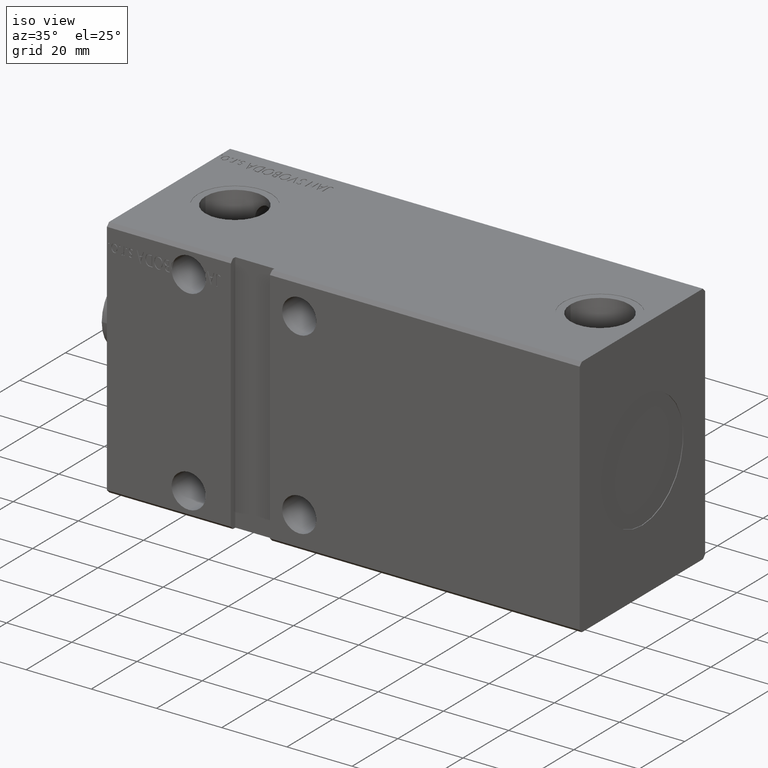
[diagram: clean part render]
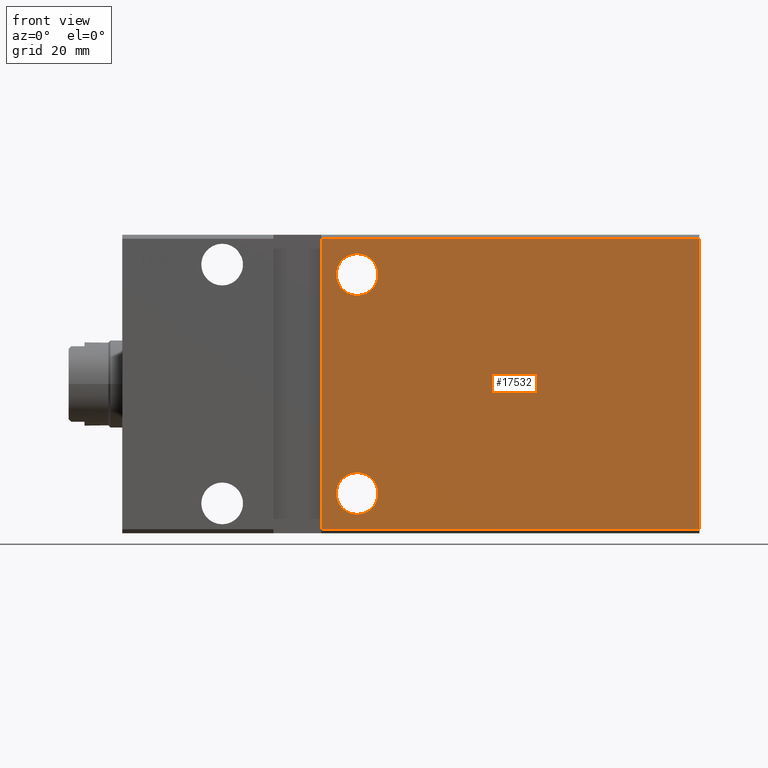
[diagram: tour spotlight — one face highlighted and labeled with its STEP entity id]
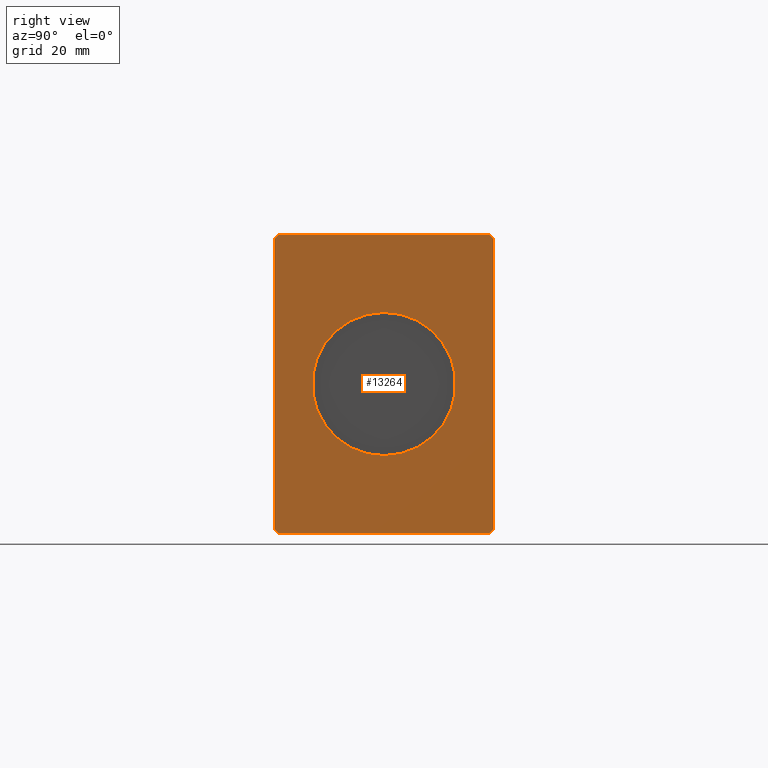
[diagram: tour spotlight — one face highlighted and labeled with its STEP entity id]
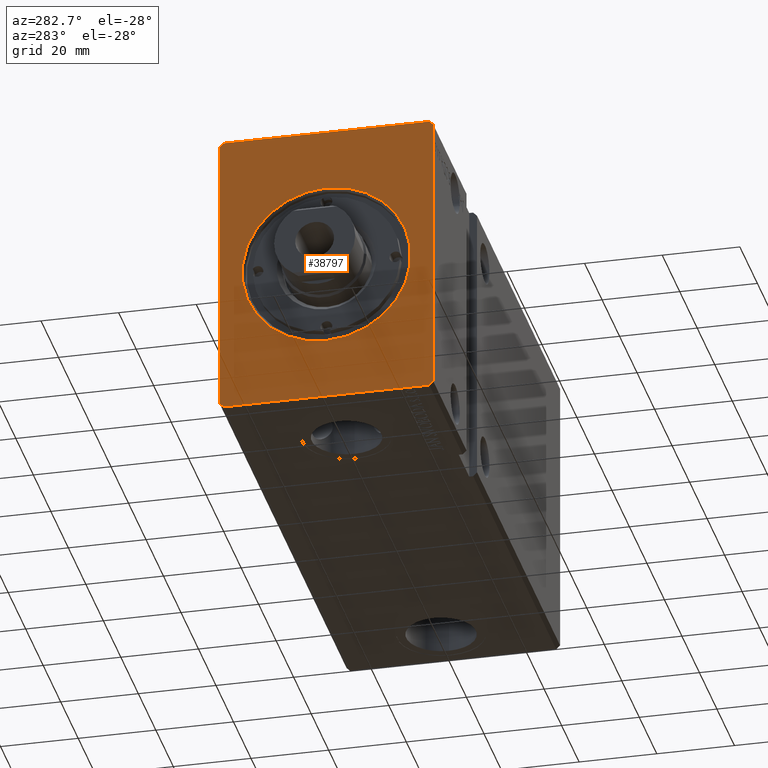
[diagram: tour spotlight — one face highlighted and labeled with its STEP entity id]
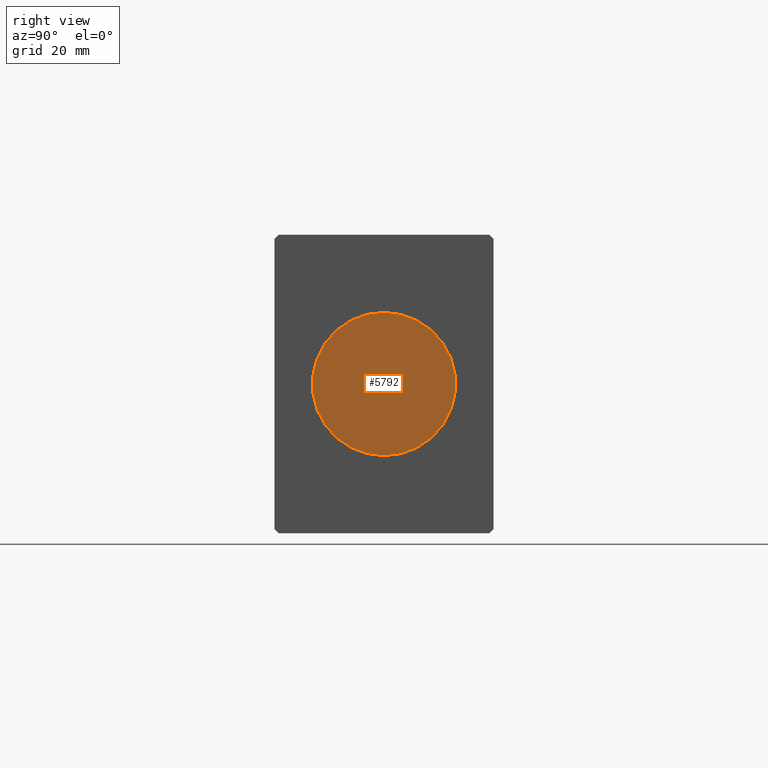
[diagram: tour spotlight — one face highlighted and labeled with its STEP entity id]
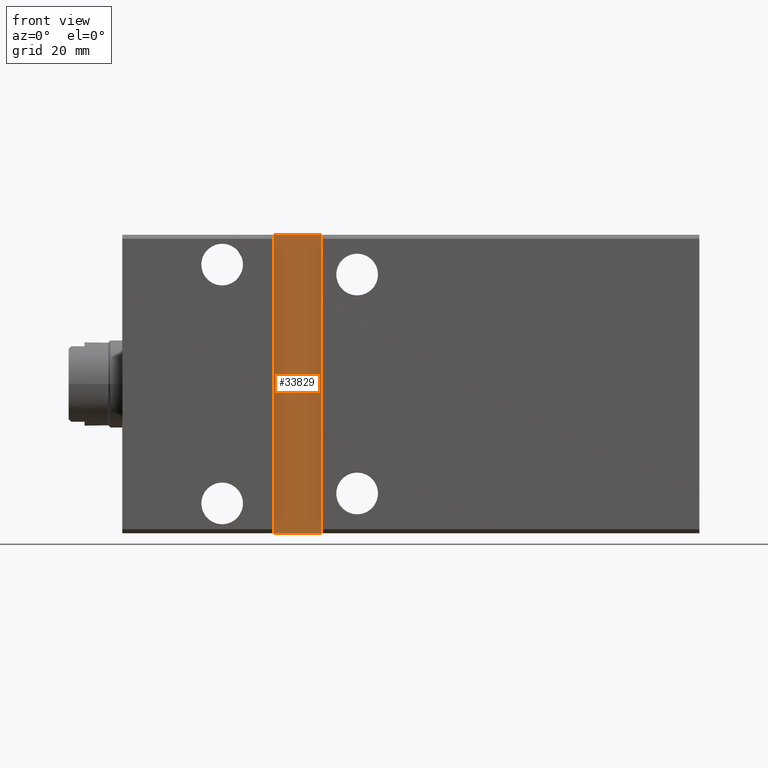
[diagram: tour spotlight — one face highlighted and labeled with its STEP entity id]
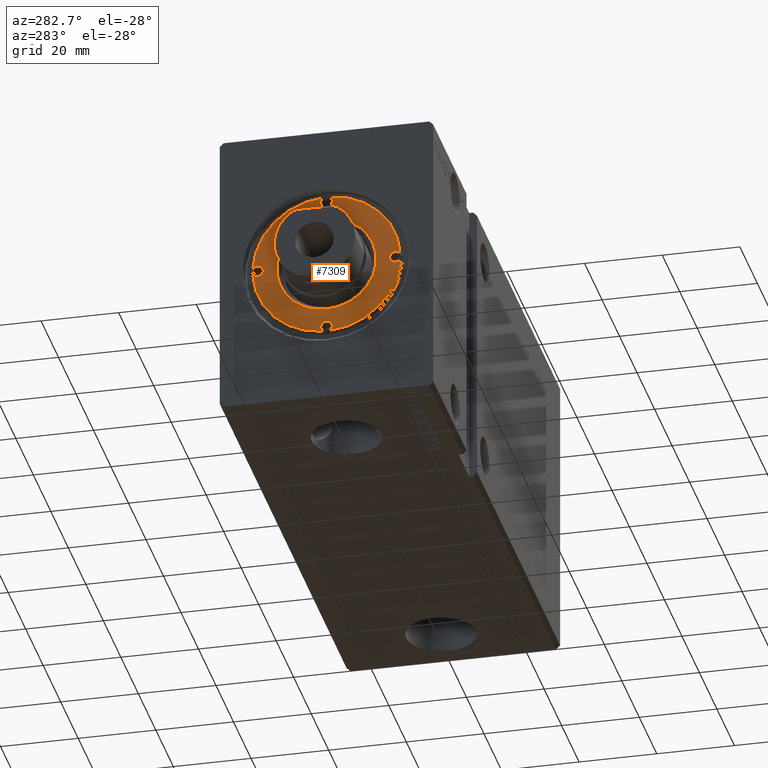
[diagram: tour spotlight — one face highlighted and labeled with its STEP entity id]
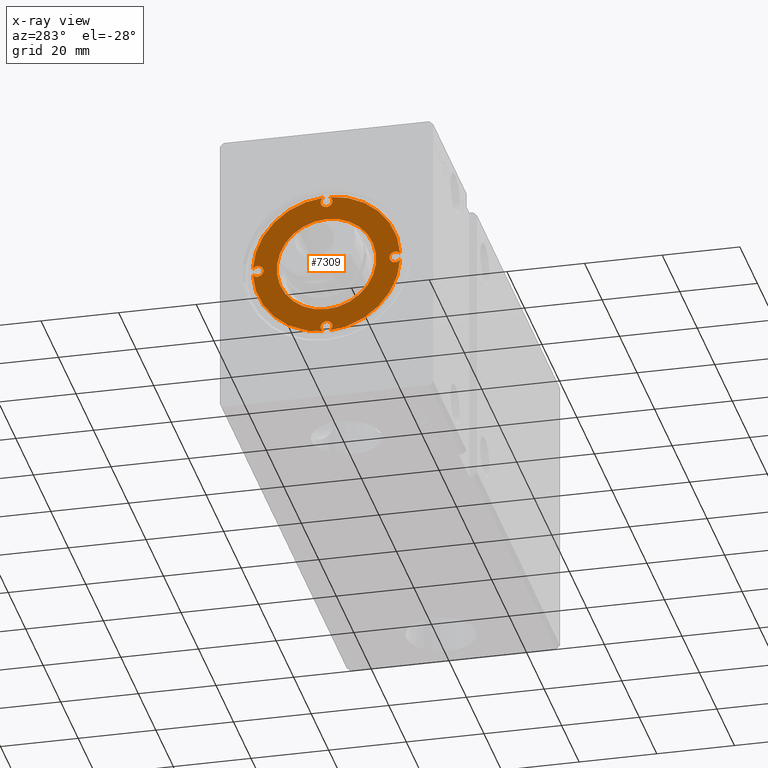
[diagram: x-ray of the same camera — body ghosted, this tour face saturated]
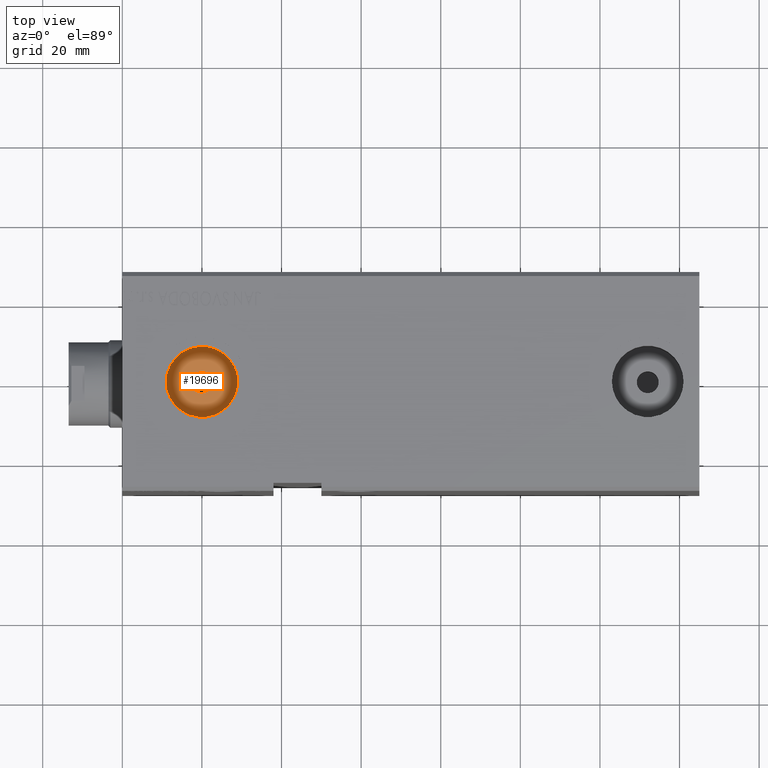
[diagram: tour spotlight — one face highlighted and labeled with its STEP entity id]
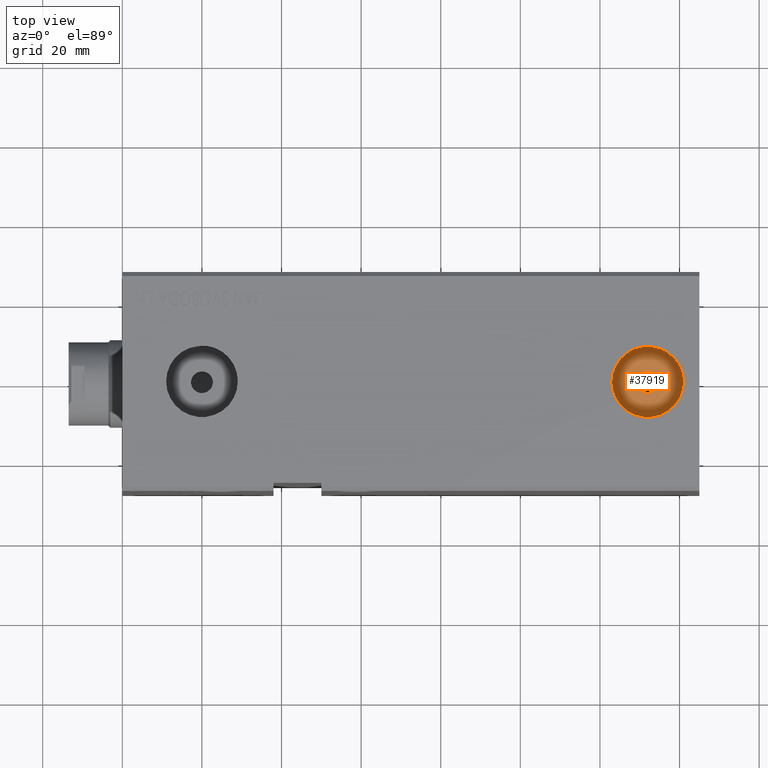
[diagram: tour spotlight — one face highlighted and labeled with its STEP entity id]
A machine part: a face-by-face anatomy tour. The part has 800 B-rep faces; the first image is the clean iso view, then the 8 largest visible faces are spotlighted one at a time (largest first), each with its STEP entity span.

Face 1 — front view, entity #17532. In plain terms, the highlighted planar face has unit normal (0, 1, 0).
Definition (entity closure, byte-faithful):
#15 = DIRECTION ( 'NONE',  ( 0.000000000000000000, -1.000000000000000000, -5.507058653894625853E-17 ) ) ;
#20 = AXIS2_PLACEMENT_3D ( 'NONE', #37047, #15, #8566 ) ;
#122 = FACE_BOUND ( 'NONE', #21305, .T. ) ;
#904 = EDGE_LOOP ( 'NONE', ( #26767, #22194 ) ) ;
#1836 = ORIENTED_EDGE ( 'NONE', *, *, #16101, .T. ) ;
#4636 = DIRECTION ( 'NONE',  ( -0.000000000000000000, 1.000000000000000000, 5.507058653894625853E-17 ) ) ;
#6281 = DIRECTION ( 'NONE',  ( 0.000000000000000000, -1.000000000000000000, -5.507058653894625853E-17 ) ) ;
#6700 = CARTESIAN_POINT ( 'NONE',  ( 145.0000000000000000, -27.50000000000000711, 36.50000000000000711 ) ) ;
#7975 = DIRECTION ( 'NONE',  ( -1.000000000000000000, -0.000000000000000000, -0.000000000000000000 ) ) ;
#8403 = CARTESIAN_POINT ( 'NONE',  ( 59.00000000000000711, -27.50000000000000355, 32.74999999999999289 ) ) ;
#8459 = EDGE_CURVE ( 'NONE', #28552, #25703, #36432, .T. ) ;
#8466 = CIRCLE ( 'NONE', #20, 5.250000000000004441 ) ;
#8566 = DIRECTION ( 'NONE',  ( 0.000000000000000000, 0.000000000000000000, -1.000000000000000000 ) ) ;
#9533 = CARTESIAN_POINT ( 'NONE',  ( 59.00000000000001421, -27.50000000000000355, -27.50000000000000355 ) ) ;
#9826 = AXIS2_PLACEMENT_3D ( 'NONE', #16087, #9964, #25246 ) ;
#9964 = DIRECTION ( 'NONE',  ( -0.000000000000000000, 1.000000000000000000, 5.507058653894625853E-17 ) ) ;
#10211 = LINE ( 'NONE', #16322, #14786 ) ;
#11156 = CIRCLE ( 'NONE', #9826, 5.249999999999997335 ) ;
#12784 = EDGE_CURVE ( 'NONE', #36713, #32444, #22376, .T. ) ;
#14543 = ORIENTED_EDGE ( 'NONE', *, *, #32167, .T. ) ;
#14786 = VECTOR ( 'NONE', #34838, 1000.000000000000000 ) ;
#14869 = CARTESIAN_POINT ( 'NONE',  ( 49.99999999999999289, -27.50000000000000711, 37.50000000000000711 ) ) ;
#15012 = VERTEX_POINT ( 'NONE', #24419 ) ;
#15042 = VERTEX_POINT ( 'NONE', #19733 ) ;
#15391 = CARTESIAN_POINT ( 'NONE',  ( 145.0000000000000000, -27.50000000000000711, 36.50000000000000711 ) ) ;
#16087 = CARTESIAN_POINT ( 'NONE',  ( 59.00000000000000711, -27.50000000000000355, 27.49999999999999645 ) ) ;
#16101 = EDGE_CURVE ( 'NONE', #15042, #25896, #11156, .T. ) ;
#16127 = CIRCLE ( 'NONE', #35607, 5.249999999999997335 ) ;
#16196 = FACE_OUTER_BOUND ( 'NONE', #36080, .T. ) ;
#16322 = CARTESIAN_POINT ( 'NONE',  ( 145.0000000000000000, -27.50000000000000711, 36.50000000000000711 ) ) ;
#17053 = DIRECTION ( 'NONE',  ( 0.000000000000000000, 0.000000000000000000, 1.000000000000000000 ) ) ;
#17357 = CARTESIAN_POINT ( 'NONE',  ( 49.99999999999999289, -27.50000000000000000, -36.49999999999997868 ) ) ;
#17532 = ADVANCED_FACE ( 'NONE', ( #24759, #16196, #122 ), #28598, .F. ) ;
#17777 = VECTOR ( 'NONE', #19126, 1000.000000000000000 ) ;
#19126 = DIRECTION ( 'NONE',  ( 0.000000000000000000, 4.752667057470705491E-17, -1.000000000000000000 ) ) ;
#19683 = ORIENTED_EDGE ( 'NONE', *, *, #8459, .F. ) ;
#19733 = CARTESIAN_POINT ( 'NONE',  ( 59.00000000000000711, -27.50000000000000355, 22.25000000000000000 ) ) ;
#19835 = CARTESIAN_POINT ( 'NONE',  ( 49.99999999999999289, -27.50000000000000711, 36.50000000000000711 ) ) ;
#21305 = EDGE_LOOP ( 'NONE', ( #1836, #14543 ) ) ;
#21845 = EDGE_CURVE ( 'NONE', #15012, #29473, #38304, .T. ) ;
#21846 = VECTOR ( 'NONE', #7975, 1000.000000000000000 ) ;
#22194 = ORIENTED_EDGE ( 'NONE', *, *, #37536, .F. ) ;
#22376 = LINE ( 'NONE', #6700, #17777 ) ;
#24419 = CARTESIAN_POINT ( 'NONE',  ( 59.00000000000001421, -27.50000000000000355, -32.75000000000000711 ) ) ;
#24759 = FACE_BOUND ( 'NONE', #904, .T. ) ;
#25246 = DIRECTION ( 'NONE',  ( 0.000000000000000000, 0.000000000000000000, 1.000000000000000000 ) ) ;
#25286 = ORIENTED_EDGE ( 'NONE', *, *, #12784, .F. ) ;
#25703 = VERTEX_POINT ( 'NONE', #19835 ) ;
#25896 = VERTEX_POINT ( 'NONE', #8403 ) ;
#26767 = ORIENTED_EDGE ( 'NONE', *, *, #21845, .F. ) ;
#27096 = LINE ( 'NONE', #35858, #21846 ) ;
#27314 = CARTESIAN_POINT ( 'NONE',  ( 145.0000000000000000, -27.50000000000000711, 36.50000000000000711 ) ) ;
#27483 = EDGE_CURVE ( 'NONE', #32444, #28552, #27096, .T. ) ;
#28044 = ORIENTED_EDGE ( 'NONE', *, *, #27483, .F. ) ;
#28248 = DIRECTION ( 'NONE',  ( 0.000000000000000000, 0.000000000000000000, -1.000000000000000000 ) ) ;
#28552 = VERTEX_POINT ( 'NONE', #17357 ) ;
#28598 = PLANE ( 'NONE',  #37172 ) ;
#29073 = VECTOR ( 'NONE', #36631, 1000.000000000000000 ) ;
#29201 = AXIS2_PLACEMENT_3D ( 'NONE', #9533, #6281, #28248 ) ;
#29473 = VERTEX_POINT ( 'NONE', #32825 ) ;
#30484 = EDGE_CURVE ( 'NONE', #36713, #25703, #10211, .T. ) ;
#31452 = DIRECTION ( 'NONE',  ( -0.000000000000000000, 1.000000000000000000, 4.752667057470705491E-17 ) ) ;
#32167 = EDGE_CURVE ( 'NONE', #25896, #15042, #16127, .T. ) ;
#32444 = VERTEX_POINT ( 'NONE', #38276 ) ;
#32515 = CARTESIAN_POINT ( 'NONE',  ( 59.00000000000000711, -27.50000000000000355, 27.49999999999999645 ) ) ;
#32825 = CARTESIAN_POINT ( 'NONE',  ( 59.00000000000001421, -27.50000000000000355, -22.25000000000000000 ) ) ;
#34838 = DIRECTION ( 'NONE',  ( -1.000000000000000000, -0.000000000000000000, -0.000000000000000000 ) ) ;
#35607 = AXIS2_PLACEMENT_3D ( 'NONE', #32515, #4636, #17053 ) ;
#35858 = CARTESIAN_POINT ( 'NONE',  ( 145.0000000000000000, -27.50000000000000355, -36.49999999999998579 ) ) ;
#36080 = EDGE_LOOP ( 'NONE', ( #37869, #19683, #28044, #25286 ) ) ;
#36432 = LINE ( 'NONE', #14869, #29073 ) ;
#36631 = DIRECTION ( 'NONE',  ( -0.000000000000000000, -9.251858538542971581E-17, 1.000000000000000000 ) ) ;
#36713 = VERTEX_POINT ( 'NONE', #27314 ) ;
#37047 = CARTESIAN_POINT ( 'NONE',  ( 59.00000000000001421, -27.50000000000000355, -27.50000000000000355 ) ) ;
#37155 = DIRECTION ( 'NONE',  ( 0.000000000000000000, -4.752667057470705491E-17, 1.000000000000000000 ) ) ;
#37172 = AXIS2_PLACEMENT_3D ( 'NONE', #15391, #31452, #37155 ) ;
#37536 = EDGE_CURVE ( 'NONE', #29473, #15012, #8466, .T. ) ;
#37869 = ORIENTED_EDGE ( 'NONE', *, *, #30484, .T. ) ;
#38276 = CARTESIAN_POINT ( 'NONE',  ( 145.0000000000000000, -27.50000000000000355, -36.49999999999998579 ) ) ;
#38304 = CIRCLE ( 'NONE', #29201, 5.250000000000004441 ) ;

Face 2 — right view, entity #13264. In plain terms, the highlighted planar face has unit normal (1, 0, 0).
Definition (entity closure, byte-faithful):
#745 = ORIENTED_EDGE ( 'NONE', *, *, #12689, .T. ) ;
#749 = VECTOR ( 'NONE', #2610, 1000.000000000000114 ) ;
#2162 = VECTOR ( 'NONE', #10800, 1000.000000000000114 ) ;
#2268 = CARTESIAN_POINT ( 'NONE',  ( 145.0000000000000000, 27.50000000000000711, -36.49999999999999289 ) ) ;
#2503 = DIRECTION ( 'NONE',  ( 1.000000000000000000, 0.000000000000000000, 0.000000000000000000 ) ) ;
#2610 = DIRECTION ( 'NONE',  ( 0.000000000000000000, -0.7071067811865474617, 0.7071067811865474617 ) ) ;
#2776 = VERTEX_POINT ( 'NONE', #31387 ) ;
#3252 = LINE ( 'NONE', #21380, #39247 ) ;
#3974 = CARTESIAN_POINT ( 'NONE',  ( 145.0000000000000000, 2.204364238465235428E-15, 18.00000000000000000 ) ) ;
#4039 = VERTEX_POINT ( 'NONE', #34751 ) ;
#4054 = VECTOR ( 'NONE', #31066, 1000.000000000000000 ) ;
#4311 = VERTEX_POINT ( 'NONE', #27589 ) ;
#5298 = LINE ( 'NONE', #30123, #2162 ) ;
#5860 = EDGE_CURVE ( 'NONE', #2776, #36713, #40221, .T. ) ;
#5899 = EDGE_CURVE ( 'NONE', #6105, #2776, #31650, .T. ) ;
#6105 = VERTEX_POINT ( 'NONE', #20652 ) ;
#6700 = CARTESIAN_POINT ( 'NONE',  ( 145.0000000000000000, -27.50000000000000711, 36.50000000000000711 ) ) ;
#6816 = DIRECTION ( 'NONE',  ( 0.000000000000000000, -0.7071067811865474617, -0.7071067811865474617 ) ) ;
#7105 = CARTESIAN_POINT ( 'NONE',  ( 145.0000000000000000, -26.50000000000000355, -37.49999999999999289 ) ) ;
#7216 = EDGE_CURVE ( 'NONE', #16724, #27799, #39722, .T. ) ;
#7654 = CIRCLE ( 'NONE', #30399, 18.00000000000000000 ) ;
#7678 = CARTESIAN_POINT ( 'NONE',  ( 145.0000000000000000, 0.000000000000000000, 0.000000000000000000 ) ) ;
#8203 = VECTOR ( 'NONE', #37757, 1000.000000000000000 ) ;
#9285 = ORIENTED_EDGE ( 'NONE', *, *, #11785, .T. ) ;
#9983 = EDGE_CURVE ( 'NONE', #4039, #13585, #7654, .T. ) ;
#10269 = EDGE_LOOP ( 'NONE', ( #39587, #22213 ) ) ;
#10334 = DIRECTION ( 'NONE',  ( 1.000000000000000000, 0.000000000000000000, 0.000000000000000000 ) ) ;
#10800 = DIRECTION ( 'NONE',  ( 0.000000000000000000, 0.7071067811865451302, -0.7071067811865500152 ) ) ;
#10826 = VECTOR ( 'NONE', #24249, 1000.000000000000000 ) ;
#11003 = ORIENTED_EDGE ( 'NONE', *, *, #7216, .T. ) ;
#11346 = CIRCLE ( 'NONE', #35396, 18.00000000000000000 ) ;
#11785 = EDGE_CURVE ( 'NONE', #32444, #12178, #5298, .T. ) ;
#12178 = VERTEX_POINT ( 'NONE', #7105 ) ;
#12689 = EDGE_CURVE ( 'NONE', #4311, #16724, #3252, .T. ) ;
#12784 = EDGE_CURVE ( 'NONE', #36713, #32444, #22376, .T. ) ;
#13155 = LINE ( 'NONE', #31267, #4054 ) ;
#13264 = ADVANCED_FACE ( 'NONE', ( #25812, #23560 ), #39024, .T. ) ;
#13585 = VERTEX_POINT ( 'NONE', #3974 ) ;
#14528 = CARTESIAN_POINT ( 'NONE',  ( 145.0000000000000000, 0.000000000000000000, 0.000000000000000000 ) ) ;
#16423 = EDGE_CURVE ( 'NONE', #27799, #6105, #39256, .T. ) ;
#16724 = VERTEX_POINT ( 'NONE', #20896 ) ;
#17777 = VECTOR ( 'NONE', #19126, 1000.000000000000000 ) ;
#19126 = DIRECTION ( 'NONE',  ( 0.000000000000000000, 4.752667057470705491E-17, -1.000000000000000000 ) ) ;
#19279 = EDGE_CURVE ( 'NONE', #12178, #4311, #13155, .T. ) ;
#19617 = CARTESIAN_POINT ( 'NONE',  ( 145.0000000000000000, 0.000000000000000000, 0.000000000000000000 ) ) ;
#20641 = DIRECTION ( 'NONE',  ( 0.000000000000000000, 0.000000000000000000, -1.000000000000000000 ) ) ;
#20652 = CARTESIAN_POINT ( 'NONE',  ( 145.0000000000000000, 26.50000000000000355, 37.50000000000000711 ) ) ;
#20896 = CARTESIAN_POINT ( 'NONE',  ( 145.0000000000000000, 27.50000000000000711, -36.49999999999999289 ) ) ;
#21380 = CARTESIAN_POINT ( 'NONE',  ( 145.0000000000000000, 26.50000000000000711, -37.49999999999999289 ) ) ;
#21896 = CARTESIAN_POINT ( 'NONE',  ( 145.0000000000000000, 26.50000000000000355, 37.50000000000000711 ) ) ;
#22213 = ORIENTED_EDGE ( 'NONE', *, *, #22649, .F. ) ;
#22291 = CARTESIAN_POINT ( 'NONE',  ( 145.0000000000000000, -26.50000000000000711, 37.50000000000000711 ) ) ;
#22340 = ORIENTED_EDGE ( 'NONE', *, *, #5860, .T. ) ;
#22376 = LINE ( 'NONE', #6700, #17777 ) ;
#22563 = ORIENTED_EDGE ( 'NONE', *, *, #12784, .T. ) ;
#22649 = EDGE_CURVE ( 'NONE', #13585, #4039, #11346, .T. ) ;
#23141 = VECTOR ( 'NONE', #6816, 1000.000000000000114 ) ;
#23560 = FACE_OUTER_BOUND ( 'NONE', #32478, .T. ) ;
#23710 = ORIENTED_EDGE ( 'NONE', *, *, #19279, .T. ) ;
#24249 = DIRECTION ( 'NONE',  ( 0.000000000000000000, -4.752667057470704875E-17, 1.000000000000000000 ) ) ;
#25311 = DIRECTION ( 'NONE',  ( 1.000000000000000000, 0.000000000000000000, 0.000000000000000000 ) ) ;
#25812 = FACE_BOUND ( 'NONE', #10269, .T. ) ;
#27314 = CARTESIAN_POINT ( 'NONE',  ( 145.0000000000000000, -27.50000000000000711, 36.50000000000000711 ) ) ;
#27589 = CARTESIAN_POINT ( 'NONE',  ( 145.0000000000000000, 26.50000000000000711, -37.49999999999999289 ) ) ;
#27799 = VERTEX_POINT ( 'NONE', #38670 ) ;
#29056 = DIRECTION ( 'NONE',  ( 0.000000000000000000, 0.000000000000000000, -1.000000000000000000 ) ) ;
#30123 = CARTESIAN_POINT ( 'NONE',  ( 145.0000000000000000, -27.50000000000000355, -36.49999999999998579 ) ) ;
#30399 = AXIS2_PLACEMENT_3D ( 'NONE', #14528, #2503, #20641 ) ;
#31066 = DIRECTION ( 'NONE',  ( 0.000000000000000000, 1.000000000000000000, 0.000000000000000000 ) ) ;
#31267 = CARTESIAN_POINT ( 'NONE',  ( 145.0000000000000000, -26.50000000000000355, -37.49999999999999289 ) ) ;
#31387 = CARTESIAN_POINT ( 'NONE',  ( 145.0000000000000000, -26.50000000000000711, 37.50000000000000711 ) ) ;
#31650 = LINE ( 'NONE', #21896, #8203 ) ;
#32444 = VERTEX_POINT ( 'NONE', #38276 ) ;
#32478 = EDGE_LOOP ( 'NONE', ( #40190, #37553, #22340, #22563, #9285, #23710, #745, #11003 ) ) ;
#34751 = CARTESIAN_POINT ( 'NONE',  ( 145.0000000000000000, 0.000000000000000000, -18.00000000000000000 ) ) ;
#35382 = AXIS2_PLACEMENT_3D ( 'NONE', #7678, #10334, #29056 ) ;
#35396 = AXIS2_PLACEMENT_3D ( 'NONE', #19617, #25311, #37312 ) ;
#36713 = VERTEX_POINT ( 'NONE', #27314 ) ;
#37002 = CARTESIAN_POINT ( 'NONE',  ( 145.0000000000000000, 27.50000000000000355, 36.50000000000000711 ) ) ;
#37312 = DIRECTION ( 'NONE',  ( 0.000000000000000000, 0.000000000000000000, -1.000000000000000000 ) ) ;
#37553 = ORIENTED_EDGE ( 'NONE', *, *, #5899, .T. ) ;
#37757 = DIRECTION ( 'NONE',  ( 0.000000000000000000, -1.000000000000000000, 0.000000000000000000 ) ) ;
#38276 = CARTESIAN_POINT ( 'NONE',  ( 145.0000000000000000, -27.50000000000000355, -36.49999999999998579 ) ) ;
#38670 = CARTESIAN_POINT ( 'NONE',  ( 145.0000000000000000, 27.50000000000000355, 36.50000000000000711 ) ) ;
#39024 = PLANE ( 'NONE',  #35382 ) ;
#39247 = VECTOR ( 'NONE', #40099, 1000.000000000000114 ) ;
#39256 = LINE ( 'NONE', #37002, #749 ) ;
#39587 = ORIENTED_EDGE ( 'NONE', *, *, #9983, .F. ) ;
#39722 = LINE ( 'NONE', #2268, #10826 ) ;
#40099 = DIRECTION ( 'NONE',  ( 0.000000000000000000, 0.7071067811865474617, 0.7071067811865474617 ) ) ;
#40190 = ORIENTED_EDGE ( 'NONE', *, *, #16423, .T. ) ;
#40221 = LINE ( 'NONE', #22291, #23141 ) ;

Face 3 — auxiliary view, entity #38797. In plain terms, the highlighted planar face has unit normal (1, 0, 0).
Definition (entity closure, byte-faithful):
#960 = CARTESIAN_POINT ( 'NONE',  ( 0.000000000000000000, 26.50000000000000355, 37.50000000000000711 ) ) ;
#1526 = ORIENTED_EDGE ( 'NONE', *, *, #27433, .F. ) ;
#2669 = CARTESIAN_POINT ( 'NONE',  ( 0.000000000000000000, -27.50000000000000355, -36.49999999999998579 ) ) ;
#2846 = CARTESIAN_POINT ( 'NONE',  ( 0.000000000000000000, 27.50000000000000355, 36.50000000000000711 ) ) ;
#3455 = VERTEX_POINT ( 'NONE', #27536 ) ;
#3831 = ORIENTED_EDGE ( 'NONE', *, *, #28533, .T. ) ;
#3874 = ORIENTED_EDGE ( 'NONE', *, *, #28111, .F. ) ;
#3898 = LINE ( 'NONE', #26084, #29103 ) ;
#5677 = FACE_OUTER_BOUND ( 'NONE', #12536, .T. ) ;
#6025 = DIRECTION ( 'NONE',  ( 0.000000000000000000, -0.7071067811865474617, -0.7071067811865474617 ) ) ;
#7191 = VERTEX_POINT ( 'NONE', #2669 ) ;
#7551 = CARTESIAN_POINT ( 'NONE',  ( 0.000000000000000000, 26.50000000000000355, 37.50000000000000711 ) ) ;
#7832 = AXIS2_PLACEMENT_3D ( 'NONE', #33756, #9134, #30712 ) ;
#8316 = EDGE_CURVE ( 'NONE', #18439, #10419, #38899, .T. ) ;
#8633 = DIRECTION ( 'NONE',  ( 0.000000000000000000, 4.752667057470705491E-17, -1.000000000000000000 ) ) ;
#8675 = VERTEX_POINT ( 'NONE', #17076 ) ;
#9134 = DIRECTION ( 'NONE',  ( 1.000000000000000000, 0.000000000000000000, 0.000000000000000000 ) ) ;
#9292 = CARTESIAN_POINT ( 'NONE',  ( 0.000000000000000000, 27.50000000000000711, -36.49999999999999289 ) ) ;
#10215 = VECTOR ( 'NONE', #17122, 1000.000000000000000 ) ;
#10419 = VERTEX_POINT ( 'NONE', #31005 ) ;
#11263 = VECTOR ( 'NONE', #6025, 1000.000000000000114 ) ;
#11835 = DIRECTION ( 'NONE',  ( 0.000000000000000000, 1.000000000000000000, 0.000000000000000000 ) ) ;
#11841 = DIRECTION ( 'NONE',  ( 1.000000000000000000, 0.000000000000000000, 0.000000000000000000 ) ) ;
#12536 = EDGE_LOOP ( 'NONE', ( #3874, #36315, #21921, #1526, #36747, #35236, #22600, #26137 ) ) ;
#12757 = LINE ( 'NONE', #9292, #22524 ) ;
#13675 = VERTEX_POINT ( 'NONE', #33460 ) ;
#15980 = VERTEX_POINT ( 'NONE', #35098 ) ;
#16039 = CIRCLE ( 'NONE', #23850, 21.70000000000000995 ) ;
#16238 = VECTOR ( 'NONE', #23359, 1000.000000000000114 ) ;
#16451 = VERTEX_POINT ( 'NONE', #17882 ) ;
#17076 = CARTESIAN_POINT ( 'NONE',  ( 0.000000000000000000, -27.50000000000000711, 36.50000000000000711 ) ) ;
#17122 = DIRECTION ( 'NONE',  ( 0.000000000000000000, -1.000000000000000000, 0.000000000000000000 ) ) ;
#17456 = LINE ( 'NONE', #36359, #16238 ) ;
#17551 = LINE ( 'NONE', #33601, #23793 ) ;
#17882 = CARTESIAN_POINT ( 'NONE',  ( 0.000000000000000000, 2.657483554149757921E-15, -21.70000000000000995 ) ) ;
#17983 = VECTOR ( 'NONE', #38226, 1000.000000000000114 ) ;
#18014 = CIRCLE ( 'NONE', #27769, 21.70000000000000995 ) ;
#18098 = PLANE ( 'NONE',  #7832 ) ;
#18439 = VERTEX_POINT ( 'NONE', #960 ) ;
#19442 = EDGE_CURVE ( 'NONE', #8675, #7191, #39776, .T. ) ;
#20908 = VERTEX_POINT ( 'NONE', #40275 ) ;
#21240 = EDGE_CURVE ( 'NONE', #10419, #8675, #30654, .T. ) ;
#21921 = ORIENTED_EDGE ( 'NONE', *, *, #37132, .F. ) ;
#22524 = VECTOR ( 'NONE', #25168, 1000.000000000000000 ) ;
#22600 = ORIENTED_EDGE ( 'NONE', *, *, #21240, .F. ) ;
#22831 = DIRECTION ( 'NONE',  ( 0.000000000000000000, 0.7071067811865451302, -0.7071067811865500152 ) ) ;
#23359 = DIRECTION ( 'NONE',  ( 0.000000000000000000, 0.7071067811865474617, 0.7071067811865474617 ) ) ;
#23793 = VECTOR ( 'NONE', #11835, 1000.000000000000000 ) ;
#23850 = AXIS2_PLACEMENT_3D ( 'NONE', #39723, #11841, #29957 ) ;
#23888 = EDGE_CURVE ( 'NONE', #3455, #25458, #12757, .T. ) ;
#25168 = DIRECTION ( 'NONE',  ( 0.000000000000000000, -4.752667057470704875E-17, 1.000000000000000000 ) ) ;
#25213 = LINE ( 'NONE', #35363, #17983 ) ;
#25458 = VERTEX_POINT ( 'NONE', #2846 ) ;
#26084 = CARTESIAN_POINT ( 'NONE',  ( 0.000000000000000000, -27.50000000000000355, -36.49999999999998579 ) ) ;
#26137 = ORIENTED_EDGE ( 'NONE', *, *, #8316, .F. ) ;
#27433 = EDGE_CURVE ( 'NONE', #13675, #20908, #17551, .T. ) ;
#27536 = CARTESIAN_POINT ( 'NONE',  ( 0.000000000000000000, 27.50000000000000711, -36.49999999999999289 ) ) ;
#27769 = AXIS2_PLACEMENT_3D ( 'NONE', #34728, #28618, #36977 ) ;
#28102 = EDGE_LOOP ( 'NONE', ( #3831, #33536 ) ) ;
#28111 = EDGE_CURVE ( 'NONE', #25458, #18439, #25213, .T. ) ;
#28533 = EDGE_CURVE ( 'NONE', #15980, #16451, #16039, .T. ) ;
#28618 = DIRECTION ( 'NONE',  ( 1.000000000000000000, 0.000000000000000000, 0.000000000000000000 ) ) ;
#29103 = VECTOR ( 'NONE', #22831, 1000.000000000000114 ) ;
#29123 = EDGE_CURVE ( 'NONE', #16451, #15980, #18014, .T. ) ;
#29957 = DIRECTION ( 'NONE',  ( 0.000000000000000000, 0.000000000000000000, -1.000000000000000000 ) ) ;
#30479 = EDGE_CURVE ( 'NONE', #7191, #13675, #3898, .T. ) ;
#30654 = LINE ( 'NONE', #40014, #11263 ) ;
#30712 = DIRECTION ( 'NONE',  ( 0.000000000000000000, 0.000000000000000000, -1.000000000000000000 ) ) ;
#31005 = CARTESIAN_POINT ( 'NONE',  ( 0.000000000000000000, -26.50000000000000711, 37.50000000000000711 ) ) ;
#33067 = CARTESIAN_POINT ( 'NONE',  ( 0.000000000000000000, -27.50000000000000711, 36.50000000000000711 ) ) ;
#33298 = VECTOR ( 'NONE', #8633, 1000.000000000000000 ) ;
#33460 = CARTESIAN_POINT ( 'NONE',  ( 0.000000000000000000, -26.50000000000000355, -37.49999999999999289 ) ) ;
#33536 = ORIENTED_EDGE ( 'NONE', *, *, #29123, .T. ) ;
#33555 = FACE_BOUND ( 'NONE', #28102, .T. ) ;
#33601 = CARTESIAN_POINT ( 'NONE',  ( 0.000000000000000000, -26.50000000000000355, -37.49999999999999289 ) ) ;
#33756 = CARTESIAN_POINT ( 'NONE',  ( 0.000000000000000000, 0.000000000000000000, 0.000000000000000000 ) ) ;
#34728 = CARTESIAN_POINT ( 'NONE',  ( 0.000000000000000000, 0.000000000000000000, 0.000000000000000000 ) ) ;
#35098 = CARTESIAN_POINT ( 'NONE',  ( 0.000000000000000000, 0.000000000000000000, 21.70000000000000995 ) ) ;
#35236 = ORIENTED_EDGE ( 'NONE', *, *, #19442, .F. ) ;
#35363 = CARTESIAN_POINT ( 'NONE',  ( 0.000000000000000000, 27.50000000000000355, 36.50000000000000711 ) ) ;
#36315 = ORIENTED_EDGE ( 'NONE', *, *, #23888, .F. ) ;
#36359 = CARTESIAN_POINT ( 'NONE',  ( 0.000000000000000000, 26.50000000000000711, -37.49999999999999289 ) ) ;
#36747 = ORIENTED_EDGE ( 'NONE', *, *, #30479, .F. ) ;
#36977 = DIRECTION ( 'NONE',  ( 0.000000000000000000, 0.000000000000000000, -1.000000000000000000 ) ) ;
#37132 = EDGE_CURVE ( 'NONE', #20908, #3455, #17456, .T. ) ;
#38226 = DIRECTION ( 'NONE',  ( 0.000000000000000000, -0.7071067811865474617, 0.7071067811865474617 ) ) ;
#38797 = ADVANCED_FACE ( 'NONE', ( #33555, #5677 ), #18098, .F. ) ;
#38899 = LINE ( 'NONE', #7551, #10215 ) ;
#39723 = CARTESIAN_POINT ( 'NONE',  ( 0.000000000000000000, 0.000000000000000000, 0.000000000000000000 ) ) ;
#39776 = LINE ( 'NONE', #33067, #33298 ) ;
#40014 = CARTESIAN_POINT ( 'NONE',  ( 0.000000000000000000, -26.50000000000000711, 37.50000000000000711 ) ) ;
#40275 = CARTESIAN_POINT ( 'NONE',  ( 0.000000000000000000, 26.50000000000000711, -37.49999999999999289 ) ) ;

Face 4 — right view, entity #5792. In plain terms, the highlighted planar face has unit normal (1, 0, 0).
Definition (entity closure, byte-faithful):
#1696 = AXIS2_PLACEMENT_3D ( 'NONE', #14790, #21300, #33100 ) ;
#3852 = CIRCLE ( 'NONE', #26596, 18.00000000000000000 ) ;
#4620 = EDGE_LOOP ( 'NONE', ( #7408, #29813 ) ) ;
#5792 = ADVANCED_FACE ( 'NONE', ( #12133 ), #11732, .T. ) ;
#5817 = VERTEX_POINT ( 'NONE', #34498 ) ;
#7408 = ORIENTED_EDGE ( 'NONE', *, *, #38599, .T. ) ;
#10989 = DIRECTION ( 'NONE',  ( 0.000000000000000000, 0.000000000000000000, -1.000000000000000000 ) ) ;
#11732 = PLANE ( 'NONE',  #1696 ) ;
#12133 = FACE_OUTER_BOUND ( 'NONE', #4620, .T. ) ;
#14181 = EDGE_CURVE ( 'NONE', #24617, #5817, #39911, .T. ) ;
#14790 = CARTESIAN_POINT ( 'NONE',  ( 144.7999999999999829, 0.000000000000000000, 0.000000000000000000 ) ) ;
#17504 = DIRECTION ( 'NONE',  ( 1.000000000000000000, 0.000000000000000000, 0.000000000000000000 ) ) ;
#18318 = DIRECTION ( 'NONE',  ( 0.000000000000000000, 0.000000000000000000, -1.000000000000000000 ) ) ;
#21300 = DIRECTION ( 'NONE',  ( 1.000000000000000000, 0.000000000000000000, 0.000000000000000000 ) ) ;
#21372 = CARTESIAN_POINT ( 'NONE',  ( 144.7999999999999829, 0.000000000000000000, 0.000000000000000000 ) ) ;
#22373 = AXIS2_PLACEMENT_3D ( 'NONE', #21372, #33769, #18318 ) ;
#23806 = CARTESIAN_POINT ( 'NONE',  ( 144.7999999999999829, 0.000000000000000000, 0.000000000000000000 ) ) ;
#24617 = VERTEX_POINT ( 'NONE', #29024 ) ;
#26596 = AXIS2_PLACEMENT_3D ( 'NONE', #23806, #17504, #10989 ) ;
#29024 = CARTESIAN_POINT ( 'NONE',  ( 144.7999999999999829, 2.204364238465235428E-15, 18.00000000000000000 ) ) ;
#29813 = ORIENTED_EDGE ( 'NONE', *, *, #14181, .T. ) ;
#33100 = DIRECTION ( 'NONE',  ( 0.000000000000000000, 0.000000000000000000, -1.000000000000000000 ) ) ;
#33769 = DIRECTION ( 'NONE',  ( 1.000000000000000000, 0.000000000000000000, 0.000000000000000000 ) ) ;
#34498 = CARTESIAN_POINT ( 'NONE',  ( 144.7999999999999829, 0.000000000000000000, -18.00000000000000000 ) ) ;
#38599 = EDGE_CURVE ( 'NONE', #5817, #24617, #3852, .T. ) ;
#39911 = CIRCLE ( 'NONE', #22373, 18.00000000000000000 ) ;

Face 5 — front view, entity #33829. In plain terms, the highlighted planar face has unit normal (0, -1, -0).
Definition (entity closure, byte-faithful):
#820 = CARTESIAN_POINT ( 'NONE',  ( 38.00000000000002132, -25.50000000000000355, -37.49999999999999289 ) ) ;
#1379 = VERTEX_POINT ( 'NONE', #7801 ) ;
#4318 = VECTOR ( 'NONE', #20615, 1000.000000000000000 ) ;
#5266 = ORIENTED_EDGE ( 'NONE', *, *, #36303, .T. ) ;
#6741 = PLANE ( 'NONE',  #27238 ) ;
#6887 = CARTESIAN_POINT ( 'NONE',  ( 49.99999999999999289, -25.50000000000000711, 37.50000000000000711 ) ) ;
#7801 = CARTESIAN_POINT ( 'NONE',  ( 49.99999999999999289, -25.50000000000000355, -37.49999999999999289 ) ) ;
#9795 = CARTESIAN_POINT ( 'NONE',  ( 0.000000000000000000, -25.50000000000000355, -2.434119925021425278E-15 ) ) ;
#10911 = EDGE_CURVE ( 'NONE', #1379, #32768, #40085, .T. ) ;
#11243 = LINE ( 'NONE', #36657, #4318 ) ;
#15459 = CARTESIAN_POINT ( 'NONE',  ( 49.99999999999999289, -25.50000000000000711, 37.50000000000000711 ) ) ;
#16477 = VERTEX_POINT ( 'NONE', #37808 ) ;
#19168 = DIRECTION ( 'NONE',  ( 0.000000000000000000, 9.251858538542971581E-17, -1.000000000000000000 ) ) ;
#19565 = ORIENTED_EDGE ( 'NONE', *, *, #28583, .T. ) ;
#20615 = DIRECTION ( 'NONE',  ( -1.000000000000000000, -0.000000000000000000, -0.000000000000000000 ) ) ;
#21834 = ORIENTED_EDGE ( 'NONE', *, *, #39580, .T. ) ;
#22220 = DIRECTION ( 'NONE',  ( 0.000000000000000000, -1.000000000000000000, -9.251858538542971581E-17 ) ) ;
#22553 = EDGE_LOOP ( 'NONE', ( #29866, #19565, #5266, #21834 ) ) ;
#22607 = DIRECTION ( 'NONE',  ( 1.000000000000000000, 0.000000000000000000, 0.000000000000000000 ) ) ;
#24083 = CARTESIAN_POINT ( 'NONE',  ( 38.00000000000000000, -25.50000000000000711, 37.50000000000000711 ) ) ;
#24619 = DIRECTION ( 'NONE',  ( -0.000000000000000000, -9.251858538542971581E-17, 1.000000000000000000 ) ) ;
#25229 = LINE ( 'NONE', #25634, #33142 ) ;
#25634 = CARTESIAN_POINT ( 'NONE',  ( 38.00000000000000000, -25.50000000000000711, 37.50000000000000711 ) ) ;
#25873 = VERTEX_POINT ( 'NONE', #24083 ) ;
#27181 = VECTOR ( 'NONE', #24619, 1000.000000000000000 ) ;
#27238 = AXIS2_PLACEMENT_3D ( 'NONE', #9795, #22220, #19168 ) ;
#28308 = FACE_OUTER_BOUND ( 'NONE', #22553, .T. ) ;
#28583 = EDGE_CURVE ( 'NONE', #32768, #25873, #11243, .T. ) ;
#29866 = ORIENTED_EDGE ( 'NONE', *, *, #10911, .T. ) ;
#31737 = DIRECTION ( 'NONE',  ( 2.775557561562891351E-16, 9.251858538542971581E-17, -1.000000000000000000 ) ) ;
#32768 = VERTEX_POINT ( 'NONE', #6887 ) ;
#33142 = VECTOR ( 'NONE', #31737, 1000.000000000000000 ) ;
#33827 = VECTOR ( 'NONE', #22607, 1000.000000000000000 ) ;
#33829 = ADVANCED_FACE ( 'NONE', ( #28308 ), #6741, .T. ) ;
#36303 = EDGE_CURVE ( 'NONE', #25873, #16477, #25229, .T. ) ;
#36657 = CARTESIAN_POINT ( 'NONE',  ( 38.00000000000000000, -25.50000000000000711, 37.50000000000000711 ) ) ;
#37666 = LINE ( 'NONE', #820, #33827 ) ;
#37808 = CARTESIAN_POINT ( 'NONE',  ( 38.00000000000002132, -25.50000000000000355, -37.49999999999999289 ) ) ;
#39580 = EDGE_CURVE ( 'NONE', #16477, #1379, #37666, .T. ) ;
#40085 = LINE ( 'NONE', #15459, #27181 ) ;

Face 6 — auxiliary view, entity #7309. An x-ray twin of the same camera follows (body ghosted, this face saturated) — the face is partly hidden behind the body. In plain terms, the highlighted planar face has unit normal (-1, 0, 0).
Definition (entity closure, byte-faithful):
#69 = CARTESIAN_POINT ( 'NONE',  ( 0.000000000000000000, -17.75000000000000000, 11.79999999999999893 ) ) ;
#563 = DIRECTION ( 'NONE',  ( 1.000000000000000000, 0.000000000000000000, 0.000000000000000000 ) ) ;
#574 = AXIS2_PLACEMENT_3D ( 'NONE', #29027, #12769, #16223 ) ;
#708 = EDGE_LOOP ( 'NONE', ( #6881, #20945 ) ) ;
#1424 = CARTESIAN_POINT ( 'NONE',  ( -1.499999999999996891, 17.75000000000000000, 11.79999999999999893 ) ) ;
#1430 = VERTEX_POINT ( 'NONE', #12661 ) ;
#1835 = ORIENTED_EDGE ( 'NONE', *, *, #30187, .F. ) ;
#2477 = DIRECTION ( 'NONE',  ( 1.000000000000000000, 0.000000000000000000, 0.000000000000000000 ) ) ;
#2569 = EDGE_CURVE ( 'NONE', #31826, #29158, #19841, .T. ) ;
#2572 = ORIENTED_EDGE ( 'NONE', *, *, #18164, .T. ) ;
#2843 = DIRECTION ( 'NONE',  ( 1.000000000000000000, 0.000000000000000000, 0.000000000000000000 ) ) ;
#2861 = CIRCLE ( 'NONE', #8706, 1.499999999999997780 ) ;
#3189 = DIRECTION ( 'NONE',  ( 1.000000000000000000, 0.000000000000000000, 0.000000000000000000 ) ) ;
#3539 = ORIENTED_EDGE ( 'NONE', *, *, #9612, .F. ) ;
#3840 = VERTEX_POINT ( 'NONE', #9565 ) ;
#3903 = VERTEX_POINT ( 'NONE', #20153 ) ;
#4127 = DIRECTION ( 'NONE',  ( -0.000000000000000000, -0.000000000000000000, 1.000000000000000000 ) ) ;
#4138 = EDGE_CURVE ( 'NONE', #31826, #13927, #8171, .T. ) ;
#4615 = EDGE_CURVE ( 'NONE', #25841, #9037, #31565, .T. ) ;
#4940 = CARTESIAN_POINT ( 'NONE',  ( 0.000000000000000000, -17.75000000000000000, 11.79999999999999893 ) ) ;
#5014 = CIRCLE ( 'NONE', #21935, 1.499999999999996891 ) ;
#5064 = ORIENTED_EDGE ( 'NONE', *, *, #4615, .F. ) ;
#5442 = CARTESIAN_POINT ( 'NONE',  ( 0.000000000000000000, 0.000000000000000000, 11.79999999999999893 ) ) ;
#6300 = AXIS2_PLACEMENT_3D ( 'NONE', #24929, #9451, #12324 ) ;
#6439 = CIRCLE ( 'NONE', #574, 19.00000000000000000 ) ;
#6609 = CARTESIAN_POINT ( 'NONE',  ( 0.000000000000000000, -17.75000000000000000, 11.79999999999999893 ) ) ;
#6611 = CIRCLE ( 'NONE', #36554, 19.00000000000000000 ) ;
#6731 = DIRECTION ( 'NONE',  ( 0.000000000000000000, 0.000000000000000000, 1.000000000000000000 ) ) ;
#6769 = DIRECTION ( 'NONE',  ( -0.000000000000000000, -0.000000000000000000, 1.000000000000000000 ) ) ;
#6881 = ORIENTED_EDGE ( 'NONE', *, *, #32950, .T. ) ;
#7309 = ADVANCED_FACE ( 'NONE', ( #37258, #8979 ), #9583, .T. ) ;
#7428 = ORIENTED_EDGE ( 'NONE', *, *, #4138, .T. ) ;
#7465 = DIRECTION ( 'NONE',  ( 1.000000000000000000, 0.000000000000000000, 0.000000000000000000 ) ) ;
#7658 = DIRECTION ( 'NONE',  ( 1.000000000000000000, 0.000000000000000000, 0.000000000000000000 ) ) ;
#8171 = CIRCLE ( 'NONE', #14695, 19.00000000000000000 ) ;
#8182 = DIRECTION ( 'NONE',  ( -0.000000000000000000, -0.000000000000000000, 1.000000000000000000 ) ) ;
#8265 = CIRCLE ( 'NONE', #6300, 1.499999999999996891 ) ;
#8465 = EDGE_CURVE ( 'NONE', #30628, #39656, #5014, .T. ) ;
#8706 = AXIS2_PLACEMENT_3D ( 'NONE', #22461, #4127, #31818 ) ;
#8979 = FACE_BOUND ( 'NONE', #708, .T. ) ;
#9037 = VERTEX_POINT ( 'NONE', #9454 ) ;
#9295 = DIRECTION ( 'NONE',  ( -0.000000000000000000, -0.000000000000000000, -1.000000000000000000 ) ) ;
#9326 = ORIENTED_EDGE ( 'NONE', *, *, #15590, .F. ) ;
#9451 = DIRECTION ( 'NONE',  ( -0.000000000000000000, -0.000000000000000000, 1.000000000000000000 ) ) ;
#9454 = CARTESIAN_POINT ( 'NONE',  ( -0.8576365450261641543, -18.98063380281689305, 11.79999999999999893 ) ) ;
#9565 = CARTESIAN_POINT ( 'NONE',  ( -16.25000000000000000, 0.000000000000000000, 11.79999999999999893 ) ) ;
#9583 = PLANE ( 'NONE',  #37484 ) ;
#9612 = EDGE_CURVE ( 'NONE', #26775, #1430, #16757, .T. ) ;
#11268 = AXIS2_PLACEMENT_3D ( 'NONE', #27639, #15434, #563 ) ;
#11498 = ORIENTED_EDGE ( 'NONE', *, *, #12658, .T. ) ;
#11562 = AXIS2_PLACEMENT_3D ( 'NONE', #19491, #37999, #7658 ) ;
#11664 = CARTESIAN_POINT ( 'NONE',  ( -1.499999999999996891, -17.75000000000000000, 11.79999999999999893 ) ) ;
#12010 = DIRECTION ( 'NONE',  ( 1.000000000000000000, 0.000000000000000000, 0.000000000000000000 ) ) ;
#12324 = DIRECTION ( 'NONE',  ( 1.000000000000000000, 0.000000000000000000, 0.000000000000000000 ) ) ;
#12658 = EDGE_CURVE ( 'NONE', #17832, #9037, #34033, .T. ) ;
#12661 = CARTESIAN_POINT ( 'NONE',  ( 0.8576365450261562717, 18.98063380281690016, 11.79999999999999893 ) ) ;
#12700 = EDGE_CURVE ( 'NONE', #31378, #3903, #33372, .T. ) ;
#12769 = DIRECTION ( 'NONE',  ( 0.000000000000000000, 0.000000000000000000, 1.000000000000000000 ) ) ;
#13096 = DIRECTION ( 'NONE',  ( 1.000000000000000000, 0.000000000000000000, 0.000000000000000000 ) ) ;
#13329 = ORIENTED_EDGE ( 'NONE', *, *, #12700, .F. ) ;
#13514 = AXIS2_PLACEMENT_3D ( 'NONE', #14919, #33230, #36081 ) ;
#13530 = DIRECTION ( 'NONE',  ( 1.000000000000000000, 0.000000000000000000, 0.000000000000000000 ) ) ;
#13578 = AXIS2_PLACEMENT_3D ( 'NONE', #5442, #9295, #3189 ) ;
#13630 = CIRCLE ( 'NONE', #34412, 12.79999999999997407 ) ;
#13894 = EDGE_CURVE ( 'NONE', #17832, #3840, #2861, .T. ) ;
#13927 = VERTEX_POINT ( 'NONE', #16156 ) ;
#14145 = CIRCLE ( 'NONE', #13514, 1.499999999999997780 ) ;
#14695 = AXIS2_PLACEMENT_3D ( 'NONE', #16634, #19700, #7465 ) ;
#14761 = CARTESIAN_POINT ( 'NONE',  ( -18.98063380281690016, 0.8576365450261579371, 11.79999999999999893 ) ) ;
#14919 = CARTESIAN_POINT ( 'NONE',  ( -17.75000000000000000, 0.000000000000000000, 11.79999999999999893 ) ) ;
#14923 = CARTESIAN_POINT ( 'NONE',  ( 18.98063380281688950, 0.8576365450261742573, 11.79999999999999893 ) ) ;
#15065 = CARTESIAN_POINT ( 'NONE',  ( 0.000000000000000000, 17.75000000000000000, 11.79999999999999893 ) ) ;
#15123 = AXIS2_PLACEMENT_3D ( 'NONE', #4940, #8182, #2477 ) ;
#15434 = DIRECTION ( 'NONE',  ( -0.000000000000000000, -0.000000000000000000, 1.000000000000000000 ) ) ;
#15590 = EDGE_CURVE ( 'NONE', #3903, #13927, #19145, .T. ) ;
#16150 = CIRCLE ( 'NONE', #13578, 12.79999999999997407 ) ;
#16156 = CARTESIAN_POINT ( 'NONE',  ( 18.98063380281690016, -0.8576365450261579371, 11.79999999999999893 ) ) ;
#16223 = DIRECTION ( 'NONE',  ( 1.000000000000000000, 0.000000000000000000, 0.000000000000000000 ) ) ;
#16495 = AXIS2_PLACEMENT_3D ( 'NONE', #27473, #24421, #2843 ) ;
#16634 = CARTESIAN_POINT ( 'NONE',  ( 0.000000000000000000, 0.000000000000000000, 11.79999999999999893 ) ) ;
#16757 = CIRCLE ( 'NONE', #11562, 1.499999999999996891 ) ;
#17832 = VERTEX_POINT ( 'NONE', #36910 ) ;
#18164 = EDGE_CURVE ( 'NONE', #30628, #33344, #6611, .T. ) ;
#18218 = ORIENTED_EDGE ( 'NONE', *, *, #30333, .F. ) ;
#18955 = CARTESIAN_POINT ( 'NONE',  ( 0.000000000000000000, 0.000000000000000000, 11.79999999999999893 ) ) ;
#19145 = CIRCLE ( 'NONE', #11268, 1.499999999999997780 ) ;
#19156 = DIRECTION ( 'NONE',  ( 1.000000000000000000, 0.000000000000000000, -0.000000000000000000 ) ) ;
#19491 = CARTESIAN_POINT ( 'NONE',  ( 0.000000000000000000, 17.75000000000000000, 11.79999999999999893 ) ) ;
#19666 = EDGE_CURVE ( 'NONE', #29158, #25841, #28776, .T. ) ;
#19700 = DIRECTION ( 'NONE',  ( 0.000000000000000000, 0.000000000000000000, 1.000000000000000000 ) ) ;
#19841 = CIRCLE ( 'NONE', #24390, 1.499999999999996891 ) ;
#20153 = CARTESIAN_POINT ( 'NONE',  ( 16.25000000000000000, 1.836970198721027222E-16, 11.79999999999999893 ) ) ;
#20172 = ORIENTED_EDGE ( 'NONE', *, *, #13894, .F. ) ;
#20183 = ORIENTED_EDGE ( 'NONE', *, *, #8465, .F. ) ;
#20945 = ORIENTED_EDGE ( 'NONE', *, *, #34944, .T. ) ;
#21521 = VERTEX_POINT ( 'NONE', #27898 ) ;
#21935 = AXIS2_PLACEMENT_3D ( 'NONE', #15065, #27474, #12010 ) ;
#22461 = CARTESIAN_POINT ( 'NONE',  ( -17.75000000000000000, 0.000000000000000000, 11.79999999999999893 ) ) ;
#23810 = CARTESIAN_POINT ( 'NONE',  ( 0.8576365450261690393, -18.98063380281689305, 11.79999999999999893 ) ) ;
#24035 = CARTESIAN_POINT ( 'NONE',  ( -0.8576365450261700385, 18.98063380281688950, 11.79999999999999893 ) ) ;
#24109 = DIRECTION ( 'NONE',  ( -0.000000000000000000, -0.000000000000000000, -1.000000000000000000 ) ) ;
#24390 = AXIS2_PLACEMENT_3D ( 'NONE', #6609, #38352, #13530 ) ;
#24421 = DIRECTION ( 'NONE',  ( 0.000000000000000000, 0.000000000000000000, 1.000000000000000000 ) ) ;
#24929 = CARTESIAN_POINT ( 'NONE',  ( 0.000000000000000000, 17.75000000000000000, 11.79999999999999893 ) ) ;
#25718 = DIRECTION ( 'NONE',  ( 1.000000000000000000, 0.000000000000000000, 0.000000000000000000 ) ) ;
#25841 = VERTEX_POINT ( 'NONE', #11664 ) ;
#26256 = ORIENTED_EDGE ( 'NONE', *, *, #2569, .F. ) ;
#26775 = VERTEX_POINT ( 'NONE', #37810 ) ;
#27473 = CARTESIAN_POINT ( 'NONE',  ( 0.000000000000000000, 0.000000000000000000, 11.79999999999999893 ) ) ;
#27474 = DIRECTION ( 'NONE',  ( -0.000000000000000000, -0.000000000000000000, 1.000000000000000000 ) ) ;
#27639 = CARTESIAN_POINT ( 'NONE',  ( 17.75000000000000000, 0.000000000000000000, 11.79999999999999893 ) ) ;
#27819 = CARTESIAN_POINT ( 'NONE',  ( 1.499999999999996891, -17.75000000000000000, 11.79999999999999893 ) ) ;
#27898 = CARTESIAN_POINT ( 'NONE',  ( 12.79999999999997407, 0.000000000000000000, 11.79999999999999893 ) ) ;
#28303 = AXIS2_PLACEMENT_3D ( 'NONE', #69, #6769, #13096 ) ;
#28456 = ORIENTED_EDGE ( 'NONE', *, *, #19666, .F. ) ;
#28776 = CIRCLE ( 'NONE', #15123, 1.499999999999996891 ) ;
#29027 = CARTESIAN_POINT ( 'NONE',  ( 0.000000000000000000, 0.000000000000000000, 11.79999999999999893 ) ) ;
#29158 = VERTEX_POINT ( 'NONE', #27819 ) ;
#30187 = EDGE_CURVE ( 'NONE', #39656, #26775, #8265, .T. ) ;
#30333 = EDGE_CURVE ( 'NONE', #3840, #33344, #14145, .T. ) ;
#30534 = DIRECTION ( 'NONE',  ( -0.000000000000000000, -0.000000000000000000, 1.000000000000000000 ) ) ;
#30628 = VERTEX_POINT ( 'NONE', #24035 ) ;
#31378 = VERTEX_POINT ( 'NONE', #14923 ) ;
#31565 = CIRCLE ( 'NONE', #28303, 1.499999999999996891 ) ;
#31818 = DIRECTION ( 'NONE',  ( 1.000000000000000000, 0.000000000000000000, 0.000000000000000000 ) ) ;
#31826 = VERTEX_POINT ( 'NONE', #23810 ) ;
#32752 = DIRECTION ( 'NONE',  ( 0.000000000000000000, 0.000000000000000000, 1.000000000000000000 ) ) ;
#32950 = EDGE_CURVE ( 'NONE', #21521, #33014, #16150, .T. ) ;
#32976 = ORIENTED_EDGE ( 'NONE', *, *, #34047, .T. ) ;
#33014 = VERTEX_POINT ( 'NONE', #36569 ) ;
#33230 = DIRECTION ( 'NONE',  ( -0.000000000000000000, -0.000000000000000000, 1.000000000000000000 ) ) ;
#33344 = VERTEX_POINT ( 'NONE', #14761 ) ;
#33372 = CIRCLE ( 'NONE', #35346, 1.499999999999997780 ) ;
#34033 = CIRCLE ( 'NONE', #16495, 19.00000000000000000 ) ;
#34047 = EDGE_CURVE ( 'NONE', #31378, #1430, #6439, .T. ) ;
#34177 = DIRECTION ( 'NONE',  ( 1.000000000000000000, 0.000000000000000000, 0.000000000000000000 ) ) ;
#34412 = AXIS2_PLACEMENT_3D ( 'NONE', #39573, #24109, #25718 ) ;
#34944 = EDGE_CURVE ( 'NONE', #33014, #21521, #13630, .T. ) ;
#35346 = AXIS2_PLACEMENT_3D ( 'NONE', #39893, #30534, #34177 ) ;
#35806 = DIRECTION ( 'NONE',  ( 1.000000000000000000, 0.000000000000000000, 0.000000000000000000 ) ) ;
#36005 = CARTESIAN_POINT ( 'NONE',  ( 0.000000000000000000, 0.000000000000000000, 11.79999999999999893 ) ) ;
#36081 = DIRECTION ( 'NONE',  ( 1.000000000000000000, 0.000000000000000000, 0.000000000000000000 ) ) ;
#36554 = AXIS2_PLACEMENT_3D ( 'NONE', #36005, #32752, #35806 ) ;
#36569 = CARTESIAN_POINT ( 'NONE',  ( -12.79999999999997407, 1.567547902908609029E-15, 11.79999999999999893 ) ) ;
#36910 = CARTESIAN_POINT ( 'NONE',  ( -18.98063380281689305, -0.8576365450261700385, 11.79999999999999893 ) ) ;
#37258 = FACE_OUTER_BOUND ( 'NONE', #37425, .T. ) ;
#37425 = EDGE_LOOP ( 'NONE', ( #20172, #11498, #5064, #28456, #26256, #7428, #9326, #13329, #32976, #3539, #1835, #20183, #2572, #18218 ) ) ;
#37484 = AXIS2_PLACEMENT_3D ( 'NONE', #18955, #6731, #19156 ) ;
#37810 = CARTESIAN_POINT ( 'NONE',  ( 1.499999999999996891, 17.75000000000000000, 11.79999999999999893 ) ) ;
#37999 = DIRECTION ( 'NONE',  ( -0.000000000000000000, -0.000000000000000000, 1.000000000000000000 ) ) ;
#38352 = DIRECTION ( 'NONE',  ( -0.000000000000000000, -0.000000000000000000, 1.000000000000000000 ) ) ;
#39573 = CARTESIAN_POINT ( 'NONE',  ( 0.000000000000000000, 0.000000000000000000, 11.79999999999999893 ) ) ;
#39656 = VERTEX_POINT ( 'NONE', #1424 ) ;
#39893 = CARTESIAN_POINT ( 'NONE',  ( 17.75000000000000000, 0.000000000000000000, 11.79999999999999893 ) ) ;

Face 7 — top view, entity #19696. In plain terms, the highlighted planar face has unit normal (0, 0, 1).
Definition (entity closure, byte-faithful):
#302 = EDGE_LOOP ( 'NONE', ( #40278, #15930 ) ) ;
#568 = CARTESIAN_POINT ( 'NONE',  ( 17.24999999999999645, 2.938863083730732299E-15, 24.40000000000000568 ) ) ;
#823 = AXIS2_PLACEMENT_3D ( 'NONE', #17362, #36464, #8585 ) ;
#2335 = CARTESIAN_POINT ( 'NONE',  ( 19.99999999999999645, 2.602085213965210642E-15, 24.40000000000000568 ) ) ;
#3204 = AXIS2_PLACEMENT_3D ( 'NONE', #33960, #15847, #18506 ) ;
#5794 = DIRECTION ( 'NONE',  ( 1.000000000000000000, 0.000000000000000000, 0.000000000000000000 ) ) ;
#7355 = EDGE_LOOP ( 'NONE', ( #12988, #38012 ) ) ;
#8298 = CIRCLE ( 'NONE', #14817, 9.000000000000001776 ) ;
#8585 = DIRECTION ( 'NONE',  ( 1.000000000000000000, 0.000000000000000000, -0.000000000000000000 ) ) ;
#9048 = DIRECTION ( 'NONE',  ( 0.000000000000000000, 0.000000000000000000, 1.000000000000000000 ) ) ;
#9788 = EDGE_CURVE ( 'NONE', #32917, #29690, #8298, .T. ) ;
#11648 = FACE_BOUND ( 'NONE', #7355, .T. ) ;
#12362 = CARTESIAN_POINT ( 'NONE',  ( 19.99999999999999645, 2.602085213965210642E-15, 24.40000000000000568 ) ) ;
#12988 = ORIENTED_EDGE ( 'NONE', *, *, #20391, .F. ) ;
#13188 = AXIS2_PLACEMENT_3D ( 'NONE', #2335, #9048, #5794 ) ;
#14817 = AXIS2_PLACEMENT_3D ( 'NONE', #15778, #21885, #34687 ) ;
#15207 = CARTESIAN_POINT ( 'NONE',  ( 28.99999999999999645, 2.602085213965210642E-15, 24.40000000000000568 ) ) ;
#15512 = CIRCLE ( 'NONE', #18770, 2.749999999999999112 ) ;
#15778 = CARTESIAN_POINT ( 'NONE',  ( 19.99999999999999645, 2.602085213965210642E-15, 24.40000000000000568 ) ) ;
#15847 = DIRECTION ( 'NONE',  ( 0.000000000000000000, 0.000000000000000000, 1.000000000000000000 ) ) ;
#15930 = ORIENTED_EDGE ( 'NONE', *, *, #21890, .T. ) ;
#17362 = CARTESIAN_POINT ( 'NONE',  ( 19.99999999999999645, 2.602085213965210642E-15, 24.40000000000000568 ) ) ;
#18506 = DIRECTION ( 'NONE',  ( 1.000000000000000000, 0.000000000000000000, 0.000000000000000000 ) ) ;
#18770 = AXIS2_PLACEMENT_3D ( 'NONE', #12362, #24776, #37171 ) ;
#19375 = CARTESIAN_POINT ( 'NONE',  ( 10.99999999999999467, 3.704267333197828553E-15, 24.40000000000000568 ) ) ;
#19696 = ADVANCED_FACE ( 'NONE', ( #11648, #24066 ), #36663, .T. ) ;
#20391 = EDGE_CURVE ( 'NONE', #37358, #26735, #39820, .T. ) ;
#20767 = CIRCLE ( 'NONE', #3204, 9.000000000000001776 ) ;
#21885 = DIRECTION ( 'NONE',  ( 0.000000000000000000, 0.000000000000000000, 1.000000000000000000 ) ) ;
#21890 = EDGE_CURVE ( 'NONE', #29690, #32917, #20767, .T. ) ;
#24066 = FACE_OUTER_BOUND ( 'NONE', #302, .T. ) ;
#24776 = DIRECTION ( 'NONE',  ( 0.000000000000000000, 0.000000000000000000, 1.000000000000000000 ) ) ;
#26735 = VERTEX_POINT ( 'NONE', #568 ) ;
#29690 = VERTEX_POINT ( 'NONE', #19375 ) ;
#32917 = VERTEX_POINT ( 'NONE', #15207 ) ;
#33046 = EDGE_CURVE ( 'NONE', #26735, #37358, #15512, .T. ) ;
#33960 = CARTESIAN_POINT ( 'NONE',  ( 19.99999999999999645, 2.602085213965210642E-15, 24.40000000000000568 ) ) ;
#34687 = DIRECTION ( 'NONE',  ( 1.000000000000000000, 0.000000000000000000, 0.000000000000000000 ) ) ;
#36247 = CARTESIAN_POINT ( 'NONE',  ( 22.74999999999999645, 2.602085213965210642E-15, 24.40000000000000568 ) ) ;
#36464 = DIRECTION ( 'NONE',  ( 0.000000000000000000, 0.000000000000000000, 1.000000000000000000 ) ) ;
#36663 = PLANE ( 'NONE',  #823 ) ;
#37171 = DIRECTION ( 'NONE',  ( 1.000000000000000000, 0.000000000000000000, 0.000000000000000000 ) ) ;
#37358 = VERTEX_POINT ( 'NONE', #36247 ) ;
#38012 = ORIENTED_EDGE ( 'NONE', *, *, #33046, .F. ) ;
#39820 = CIRCLE ( 'NONE', #13188, 2.749999999999999112 ) ;
#40278 = ORIENTED_EDGE ( 'NONE', *, *, #9788, .T. ) ;

Face 8 — top view, entity #37919. In plain terms, the highlighted planar face has unit normal (0, 0, 1).
Definition (entity closure, byte-faithful):
#514 = CARTESIAN_POINT ( 'NONE',  ( 132.0000000000000000, -3.300664193009419462E-16, 24.40000000000000568 ) ) ;
#2511 = DIRECTION ( 'NONE',  ( 1.000000000000000000, 0.000000000000000000, -0.000000000000000000 ) ) ;
#2963 = DIRECTION ( 'NONE',  ( 1.000000000000000000, 0.000000000000000000, 0.000000000000000000 ) ) ;
#4349 = AXIS2_PLACEMENT_3D ( 'NONE', #15308, #15515, #21628 ) ;
#4413 = DIRECTION ( 'NONE',  ( 1.000000000000000000, 0.000000000000000000, 0.000000000000000000 ) ) ;
#5023 = CARTESIAN_POINT ( 'NONE',  ( 132.0000000000000000, -3.300664193009419462E-16, 24.40000000000000568 ) ) ;
#5664 = EDGE_CURVE ( 'NONE', #6130, #10657, #15362, .T. ) ;
#5904 = EDGE_CURVE ( 'NONE', #20452, #10089, #30956, .T. ) ;
#6130 = VERTEX_POINT ( 'NONE', #24290 ) ;
#7126 = ORIENTED_EDGE ( 'NONE', *, *, #29597, .T. ) ;
#9814 = ORIENTED_EDGE ( 'NONE', *, *, #11736, .F. ) ;
#10089 = VERTEX_POINT ( 'NONE', #25899 ) ;
#10657 = VERTEX_POINT ( 'NONE', #39920 ) ;
#11736 = EDGE_CURVE ( 'NONE', #10089, #20452, #16475, .T. ) ;
#14269 = CARTESIAN_POINT ( 'NONE',  ( 132.0000000000000000, -3.300664193009419462E-16, 24.40000000000000568 ) ) ;
#14760 = CIRCLE ( 'NONE', #4349, 9.000000000000007105 ) ;
#15084 = CARTESIAN_POINT ( 'NONE',  ( 134.7500000000000000, -3.300664193009419462E-16, 24.40000000000000568 ) ) ;
#15308 = CARTESIAN_POINT ( 'NONE',  ( 132.0000000000000000, -3.300664193009419462E-16, 24.40000000000000568 ) ) ;
#15362 = CIRCLE ( 'NONE', #25089, 9.000000000000007105 ) ;
#15515 = DIRECTION ( 'NONE',  ( 0.000000000000000000, 0.000000000000000000, 1.000000000000000000 ) ) ;
#15596 = EDGE_LOOP ( 'NONE', ( #7126, #18427 ) ) ;
#15634 = AXIS2_PLACEMENT_3D ( 'NONE', #36296, #20453, #2511 ) ;
#16475 = CIRCLE ( 'NONE', #21684, 2.750000000000002665 ) ;
#17114 = DIRECTION ( 'NONE',  ( 1.000000000000000000, 0.000000000000000000, 0.000000000000000000 ) ) ;
#18427 = ORIENTED_EDGE ( 'NONE', *, *, #5664, .T. ) ;
#20452 = VERTEX_POINT ( 'NONE', #15084 ) ;
#20453 = DIRECTION ( 'NONE',  ( 0.000000000000000000, 0.000000000000000000, 1.000000000000000000 ) ) ;
#21628 = DIRECTION ( 'NONE',  ( 1.000000000000000000, 0.000000000000000000, 0.000000000000000000 ) ) ;
#21684 = AXIS2_PLACEMENT_3D ( 'NONE', #14269, #23825, #17114 ) ;
#23692 = FACE_OUTER_BOUND ( 'NONE', #15596, .T. ) ;
#23825 = DIRECTION ( 'NONE',  ( 0.000000000000000000, 0.000000000000000000, 1.000000000000000000 ) ) ;
#23896 = PLANE ( 'NONE',  #15634 ) ;
#24290 = CARTESIAN_POINT ( 'NONE',  ( 123.0000000000000000, 7.721156999316771482E-16, 24.40000000000000568 ) ) ;
#24846 = EDGE_LOOP ( 'NONE', ( #33942, #9814 ) ) ;
#25089 = AXIS2_PLACEMENT_3D ( 'NONE', #5023, #38214, #4413 ) ;
#25899 = CARTESIAN_POINT ( 'NONE',  ( 129.2500000000000000, 6.711450464582003848E-18, 24.40000000000000568 ) ) ;
#27063 = AXIS2_PLACEMENT_3D ( 'NONE', #514, #31051, #2963 ) ;
#29597 = EDGE_CURVE ( 'NONE', #10657, #6130, #14760, .T. ) ;
#30956 = CIRCLE ( 'NONE', #27063, 2.750000000000002665 ) ;
#31051 = DIRECTION ( 'NONE',  ( 0.000000000000000000, 0.000000000000000000, 1.000000000000000000 ) ) ;
#32649 = FACE_BOUND ( 'NONE', #24846, .T. ) ;
#33942 = ORIENTED_EDGE ( 'NONE', *, *, #5904, .F. ) ;
#36296 = CARTESIAN_POINT ( 'NONE',  ( 132.0000000000000000, -3.300664193009419462E-16, 24.40000000000000568 ) ) ;
#37919 = ADVANCED_FACE ( 'NONE', ( #32649, #23692 ), #23896, .T. ) ;
#38214 = DIRECTION ( 'NONE',  ( 0.000000000000000000, 0.000000000000000000, 1.000000000000000000 ) ) ;
#39920 = CARTESIAN_POINT ( 'NONE',  ( 141.0000000000000000, -3.300664193009419462E-16, 24.40000000000000568 ) ) ;